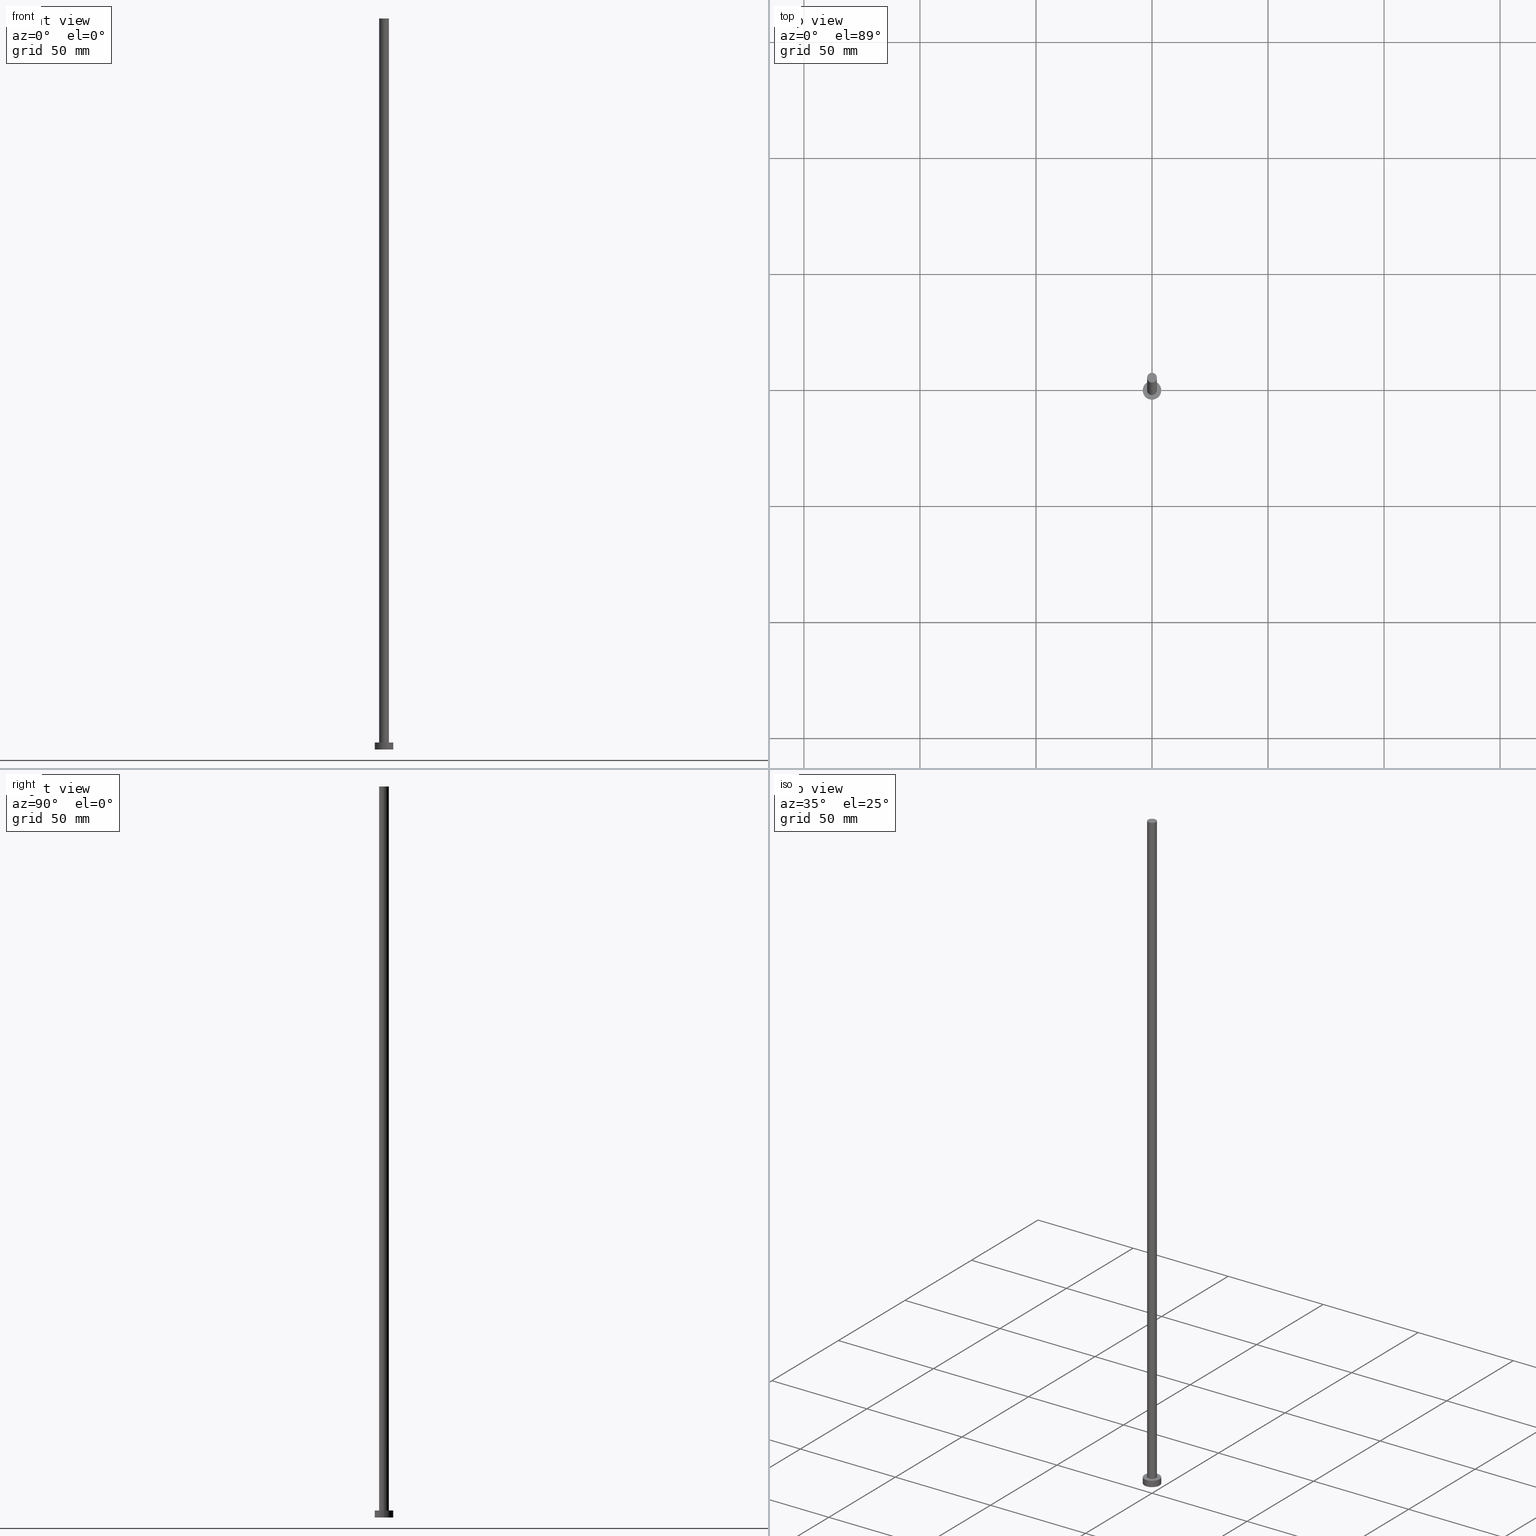
[diagram: canonical four-view strip — front | top / right | iso, engineering-drawing reading convention]
A machine part, canonical four-view strip (front | top / right | iso — engineering-drawing reading convention). The complete STEP part file that produces these views, byte-faithful:
ISO-10303-21;
HEADER;
FILE_DESCRIPTION (( 'STEP AP203' ),
    '1' );
FILE_NAME ('66d8.STEP',
    '2023-02-12T12:00:20',
    ( '' ),
    ( '' ),
    'SwSTEP 2.0',
    'SolidWorks 2019',
    '' );
FILE_SCHEMA (( 'CONFIG_CONTROL_DESIGN' ));
ENDSEC;

DATA;
#1 = CYLINDRICAL_SURFACE ( 'NONE', #154, 2.100000000000000089 ) ;
#2 = CIRCLE ( 'NONE', #185, 4.000000000000000000 ) ;
#3 = DIRECTION ( 'NONE',  ( -1.000000000000000000, 0.000000000000000000, 0.000000000000000000 ) ) ;
#4 = LINE ( 'NONE', #90, #60 ) ;
#5 = APPROVAL_ROLE ( '' ) ;
#6 = VERTEX_POINT ( 'NONE', #176 ) ;
#7 = CIRCLE ( 'NONE', #56, 4.000000000000000000 ) ;
#8 = EDGE_LOOP ( 'NONE', ( #117, #153 ) ) ;
#9 = VECTOR ( 'NONE', #148, 1000.000000000000000 ) ;
#10 = APPROVAL_DATE_TIME ( #114, #254 ) ;
#11 = ORIENTED_EDGE ( 'NONE', *, *, #19, .T. ) ;
#12 = DATE_AND_TIME ( #103, #230 ) ;
#13 = CARTESIAN_POINT ( 'NONE',  ( 4.000000000000000000, 4.898587196589412829E-16, 3.000000000000000000 ) ) ;
#14 = ADVANCED_FACE ( 'NONE', ( #247 ), #210, .T. ) ;
#15 = EDGE_LOOP ( 'NONE', ( #250, #191 ) ) ;
#16 = CLOSED_SHELL ( 'NONE', ( #221, #187, #14, #50, #234, #239, #58 ) ) ;
#17 = DIRECTION ( 'NONE',  ( 0.000000000000000000, 0.000000000000000000, 1.000000000000000000 ) ) ;
#18 = DIRECTION ( 'NONE',  ( 0.000000000000000000, 0.000000000000000000, 1.000000000000000000 ) ) ;
#19 = EDGE_CURVE ( 'NONE', #57, #226, #83, .T. ) ;
#20 = DIRECTION ( 'NONE',  ( 1.000000000000000000, 0.000000000000000000, 0.000000000000000000 ) ) ;
#21 =( LENGTH_UNIT ( ) NAMED_UNIT ( * ) SI_UNIT ( .MILLI., .METRE. ) );
#22 = PRODUCT_DEFINITION_SHAPE ( 'NONE', 'NONE',  #111 ) ;
#23 = PERSON ( 'NEUR�EN�', 'NEUR�EN�', 'NEUR�EN�', ('NEUR�EN�'), ('NEUR�EN�'), ('NEUR�EN�') ) ;
#24 = DIRECTION ( 'NONE',  ( 0.000000000000000000, 0.000000000000000000, 1.000000000000000000 ) ) ;
#25 = ORGANIZATION ( 'NEUR�EN�', 'NEUR�EN�', '' ) ;
#26 = EDGE_CURVE ( 'NONE', #57, #146, #2, .T. ) ;
#27 = PERSON_AND_ORGANIZATION ( #23, #25 ) ;
#28 = COORDINATED_UNIVERSAL_TIME_OFFSET ( 1, 0, .AHEAD. ) ;
#29 = SHAPE_DEFINITION_REPRESENTATION ( #22, #74 ) ;
#30 = AXIS2_PLACEMENT_3D ( 'NONE', #101, #198, #236 ) ;
#31 = PRODUCT_RELATED_PRODUCT_CATEGORY ( 'detail', '', ( #227 ) ) ;
#32 = ORIENTED_EDGE ( 'NONE', *, *, #19, .F. ) ;
#33 = COORDINATED_UNIVERSAL_TIME_OFFSET ( 1, 0, .AHEAD. ) ;
#34 = VERTEX_POINT ( 'NONE', #61 ) ;
#35 = MECHANICAL_CONTEXT ( 'NONE', #40, 'mechanical' ) ;
#36 = ORIENTED_EDGE ( 'NONE', *, *, #26, .F. ) ;
#37 = EDGE_CURVE ( 'NONE', #34, #93, #159, .T. ) ;
#38 = CARTESIAN_POINT ( 'NONE',  ( 0.000000000000000000, 0.000000000000000000, 3.000000000000000000 ) ) ;
#39 = PERSON_AND_ORGANIZATION_ROLE ( 'classification_officer' ) ;
#40 = APPLICATION_CONTEXT ( 'configuration controlled 3d designs of mechanical parts and assemblies' ) ;
#41 = FACE_OUTER_BOUND ( 'NONE', #8, .T. ) ;
#42 = DIRECTION ( 'NONE',  ( 1.000000000000000000, 0.000000000000000000, -0.000000000000000000 ) ) ;
#43 = CALENDAR_DATE ( 2023, 12, 2 ) ;
#44 = FACE_BOUND ( 'NONE', #207, .T. ) ;
#45 = APPROVAL ( #199, 'NEUR�EN�' ) ;
#46 = FACE_OUTER_BOUND ( 'NONE', #249, .T. ) ;
#47 = VECTOR ( 'NONE', #160, 1000.000000000000000 ) ;
#48 = CARTESIAN_POINT ( 'NONE',  ( 0.000000000000000000, 0.000000000000000000, 315.0000000000000000 ) ) ;
#49 = CARTESIAN_POINT ( 'NONE',  ( 0.000000000000000000, 0.000000000000000000, 0.000000000000000000 ) ) ;
#50 = ADVANCED_FACE ( 'NONE', ( #44, #135 ), #134, .T. ) ;
#51 = CARTESIAN_POINT ( 'NONE',  ( 0.000000000000000000, 0.000000000000000000, 3.000000000000000000 ) ) ;
#52 = CALENDAR_DATE ( 2023, 12, 2 ) ;
#53 = ORIENTED_EDGE ( 'NONE', *, *, #116, .F. ) ;
#54 = ORIENTED_EDGE ( 'NONE', *, *, #37, .F. ) ;
#55 = ORIENTED_EDGE ( 'NONE', *, *, #179, .F. ) ;
#56 = AXIS2_PLACEMENT_3D ( 'NONE', #49, #165, #200 ) ;
#57 = VERTEX_POINT ( 'NONE', #13 ) ;
#58 = ADVANCED_FACE ( 'NONE', ( #41 ), #217, .T. ) ;
#59 = CARTESIAN_POINT ( 'NONE',  ( -2.100000000000000089, 0.000000000000000000, 315.0000000000000000 ) ) ;
#60 = VECTOR ( 'NONE', #147, 1000.000000000000000 ) ;
#61 = CARTESIAN_POINT ( 'NONE',  ( 2.100000000000000089, 2.571758278209441957E-16, 315.0000000000000000 ) ) ;
#62 = DIRECTION ( 'NONE',  ( -1.000000000000000000, 0.000000000000000000, 0.000000000000000000 ) ) ;
#63 = AXIS2_PLACEMENT_3D ( 'NONE', #215, #18, #119 ) ;
#64 = PERSON_AND_ORGANIZATION ( #23, #25 ) ;
#65 = CC_DESIGN_APPROVAL ( #178, ( #218 ) ) ;
#66 = CYLINDRICAL_SURFACE ( 'NONE', #88, 2.100000000000000089 ) ;
#67 = ORIENTED_EDGE ( 'NONE', *, *, #179, .T. ) ;
#68 = CC_DESIGN_PERSON_AND_ORGANIZATION_ASSIGNMENT ( #27, #77, ( #111 ) ) ;
#69 = DATE_TIME_ROLE ( 'classification_date' ) ;
#70 = CARTESIAN_POINT ( 'NONE',  ( 0.000000000000000000, 0.000000000000000000, 315.0000000000000000 ) ) ;
#71 = AXIS2_PLACEMENT_3D ( 'NONE', #133, #197, #104 ) ;
#72 = DESIGN_CONTEXT ( 'detailed design', #89, 'design' ) ;
#73 = PLANE ( 'NONE',  #213 ) ;
#74 = ADVANCED_BREP_SHAPE_REPRESENTATION ( '66d8', ( #92, #94 ), #82 ) ;
#75 = DIRECTION ( 'NONE',  ( 0.000000000000000000, 0.000000000000000000, 1.000000000000000000 ) ) ;
#76 = AXIS2_PLACEMENT_3D ( 'NONE', #51, #186, #145 ) ;
#77 = PERSON_AND_ORGANIZATION_ROLE ( 'creator' ) ;
#78 = DIRECTION ( 'NONE',  ( -0.000000000000000000, -0.000000000000000000, -1.000000000000000000 ) ) ;
#79 = AXIS2_PLACEMENT_3D ( 'NONE', #128, #229, #20 ) ;
#80 = PERSON_AND_ORGANIZATION ( #23, #25 ) ;
#81 = PERSON_AND_ORGANIZATION ( #23, #25 ) ;
#82 =( GEOMETRIC_REPRESENTATION_CONTEXT ( 3 ) GLOBAL_UNCERTAINTY_ASSIGNED_CONTEXT ( ( #85 ) ) GLOBAL_UNIT_ASSIGNED_CONTEXT ( ( #21, #188, #244 ) ) REPRESENTATION_CONTEXT ( 'NONE', 'WORKASPACE' ) );
#83 = LINE ( 'NONE', #216, #47 ) ;
#84 = EDGE_CURVE ( 'NONE', #152, #95, #118, .T. ) ;
#85 = UNCERTAINTY_MEASURE_WITH_UNIT (LENGTH_MEASURE( 1.000000000000000082E-05 ), #21, 'distance_accuracy_value', 'NONE');
#86 = CYLINDRICAL_SURFACE ( 'NONE', #76, 4.000000000000000000 ) ;
#87 = APPROVAL_ROLE ( '' ) ;
#88 = AXIS2_PLACEMENT_3D ( 'NONE', #70, #109, #3 ) ;
#89 = APPLICATION_CONTEXT ( 'configuration controlled 3d designs of mechanical parts and assemblies' ) ;
#90 = CARTESIAN_POINT ( 'NONE',  ( 2.100000000000000089, 2.571758278209441957E-16, 315.0000000000000000 ) ) ;
#91 = CALENDAR_DATE ( 2023, 12, 2 ) ;
#92 = MANIFOLD_SOLID_BREP ( 'P�idat vysunut�m3', #16 ) ;
#93 = VERTEX_POINT ( 'NONE', #59 ) ;
#94 = AXIS2_PLACEMENT_3D ( 'NONE', #209, #174, #206 ) ;
#95 = VERTEX_POINT ( 'NONE', #121 ) ;
#96 = ORIENTED_EDGE ( 'NONE', *, *, #105, .F. ) ;
#97 = CIRCLE ( 'NONE', #242, 2.100000000000000089 ) ;
#98 = EDGE_LOOP ( 'NONE', ( #32, #53, #175, #194 ) ) ;
#99 = SECURITY_CLASSIFICATION ( '', '', #214 ) ;
#100 = PERSON_AND_ORGANIZATION_ROLE ( 'creator' ) ;
#101 = CARTESIAN_POINT ( 'NONE',  ( 0.000000000000000000, 0.000000000000000000, 315.0000000000000000 ) ) ;
#102 = AXIS2_PLACEMENT_3D ( 'NONE', #181, #182, #106 ) ;
#103 = CALENDAR_DATE ( 2023, 12, 2 ) ;
#104 = DIRECTION ( 'NONE',  ( 1.000000000000000000, 0.000000000000000000, 0.000000000000000000 ) ) ;
#105 = EDGE_CURVE ( 'NONE', #6, #226, #180, .T. ) ;
#106 = DIRECTION ( 'NONE',  ( 1.000000000000000000, 0.000000000000000000, 0.000000000000000000 ) ) ;
#107 = ORIENTED_EDGE ( 'NONE', *, *, #170, .T. ) ;
#108 = CC_DESIGN_DATE_AND_TIME_ASSIGNMENT ( #222, #69, ( #99 ) ) ;
#109 = DIRECTION ( 'NONE',  ( -0.000000000000000000, -0.000000000000000000, -1.000000000000000000 ) ) ;
#110 = APPROVAL_PERSON_ORGANIZATION ( #150, #178, #112 ) ;
#111 = PRODUCT_DEFINITION ( 'NEZN�M�', '', #218, #72 ) ;
#112 = APPROVAL_ROLE ( '' ) ;
#113 = EDGE_LOOP ( 'NONE', ( #54, #107, #235, #196 ) ) ;
#114 = DATE_AND_TIME ( #52, #173 ) ;
#115 = ORIENTED_EDGE ( 'NONE', *, *, #137, .F. ) ;
#116 = EDGE_CURVE ( 'NONE', #146, #57, #208, .T. ) ;
#117 = ORIENTED_EDGE ( 'NONE', *, *, #137, .T. ) ;
#118 = CIRCLE ( 'NONE', #63, 2.100000000000000089 ) ;
#119 = DIRECTION ( 'NONE',  ( 1.000000000000000000, 0.000000000000000000, 0.000000000000000000 ) ) ;
#120 = COORDINATED_UNIVERSAL_TIME_OFFSET ( 1, 0, .AHEAD. ) ;
#121 = CARTESIAN_POINT ( 'NONE',  ( 2.100000000000000089, 2.571758278209441957E-16, 3.000000000000000000 ) ) ;
#122 = CARTESIAN_POINT ( 'NONE',  ( 0.000000000000000000, 0.000000000000000000, 3.000000000000000000 ) ) ;
#123 = APPLICATION_PROTOCOL_DEFINITION ( 'international standard', 'config_control_design', 1994, #40 ) ;
#124 = CARTESIAN_POINT ( 'NONE',  ( 0.000000000000000000, 0.000000000000000000, 315.0000000000000000 ) ) ;
#125 = CC_DESIGN_PERSON_AND_ORGANIZATION_ASSIGNMENT ( #81, #39, ( #99 ) ) ;
#126 = DIRECTION ( 'NONE',  ( -0.000000000000000000, -0.000000000000000000, -1.000000000000000000 ) ) ;
#127 = AXIS2_PLACEMENT_3D ( 'NONE', #248, #78, #62 ) ;
#128 = CARTESIAN_POINT ( 'NONE',  ( 0.000000000000000000, 0.000000000000000000, 3.000000000000000000 ) ) ;
#129 = APPROVAL_STATUS ( 'not_yet_approved' ) ;
#130 = ORIENTED_EDGE ( 'NONE', *, *, #156, .T. ) ;
#131 = CC_DESIGN_PERSON_AND_ORGANIZATION_ASSIGNMENT ( #212, #251, ( #218 ) ) ;
#132 = ORIENTED_EDGE ( 'NONE', *, *, #84, .F. ) ;
#133 = CARTESIAN_POINT ( 'NONE',  ( 0.000000000000000000, 0.000000000000000000, 0.000000000000000000 ) ) ;
#134 = PLANE ( 'NONE',  #252 ) ;
#135 = FACE_OUTER_BOUND ( 'NONE', #15, .T. ) ;
#136 = CARTESIAN_POINT ( 'NONE',  ( 0.000000000000000000, 0.000000000000000000, 315.0000000000000000 ) ) ;
#137 = EDGE_CURVE ( 'NONE', #93, #34, #97, .T. ) ;
#138 = CC_DESIGN_APPROVAL ( #45, ( #99 ) ) ;
#139 = DIRECTION ( 'NONE',  ( 0.000000000000000000, 0.000000000000000000, 1.000000000000000000 ) ) ;
#140 = PERSON_AND_ORGANIZATION ( #23, #25 ) ;
#141 = LINE ( 'NONE', #243, #9 ) ;
#142 = ORIENTED_EDGE ( 'NONE', *, *, #84, .T. ) ;
#143 = LINE ( 'NONE', #183, #162 ) ;
#144 = CC_DESIGN_SECURITY_CLASSIFICATION ( #99, ( #218 ) ) ;
#145 = DIRECTION ( 'NONE',  ( -1.000000000000000000, 0.000000000000000000, 0.000000000000000000 ) ) ;
#146 = VERTEX_POINT ( 'NONE', #168 ) ;
#147 = DIRECTION ( 'NONE',  ( -0.000000000000000000, -0.000000000000000000, -1.000000000000000000 ) ) ;
#148 = DIRECTION ( 'NONE',  ( -0.000000000000000000, -0.000000000000000000, -1.000000000000000000 ) ) ;
#149 = EDGE_CURVE ( 'NONE', #146, #6, #141, .T. ) ;
#150 = PERSON_AND_ORGANIZATION ( #23, #25 ) ;
#151 = ORIENTED_EDGE ( 'NONE', *, *, #201, .F. ) ;
#152 = VERTEX_POINT ( 'NONE', #184 ) ;
#153 = ORIENTED_EDGE ( 'NONE', *, *, #37, .T. ) ;
#154 = AXIS2_PLACEMENT_3D ( 'NONE', #48, #171, #204 ) ;
#155 = PERSON_AND_ORGANIZATION ( #23, #25 ) ;
#156 = EDGE_CURVE ( 'NONE', #93, #152, #143, .T. ) ;
#157 = DIRECTION ( 'NONE',  ( 0.000000000000000000, 0.000000000000000000, 1.000000000000000000 ) ) ;
#158 = CC_DESIGN_PERSON_AND_ORGANIZATION_ASSIGNMENT ( #80, #232, ( #227 ) ) ;
#159 = CIRCLE ( 'NONE', #166, 2.100000000000000089 ) ;
#160 = DIRECTION ( 'NONE',  ( -0.000000000000000000, -0.000000000000000000, -1.000000000000000000 ) ) ;
#161 = APPROVAL_DATE_TIME ( #12, #178 ) ;
#162 = VECTOR ( 'NONE', #126, 1000.000000000000000 ) ;
#163 = APPROVAL_PERSON_ORGANIZATION ( #140, #45, #87 ) ;
#164 = DATE_AND_TIME ( #202, #240 ) ;
#165 = DIRECTION ( 'NONE',  ( 0.000000000000000000, 0.000000000000000000, 1.000000000000000000 ) ) ;
#166 = AXIS2_PLACEMENT_3D ( 'NONE', #136, #139, #219 ) ;
#167 = APPROVAL_DATE_TIME ( #164, #45 ) ;
#168 = CARTESIAN_POINT ( 'NONE',  ( -4.000000000000000000, 0.000000000000000000, 3.000000000000000000 ) ) ;
#169 = CARTESIAN_POINT ( 'NONE',  ( 4.000000000000000000, 4.898587196589412829E-16, 0.000000000000000000 ) ) ;
#170 = EDGE_CURVE ( 'NONE', #34, #95, #4, .T. ) ;
#171 = DIRECTION ( 'NONE',  ( -0.000000000000000000, -0.000000000000000000, -1.000000000000000000 ) ) ;
#172 = DATE_AND_TIME ( #91, #253 ) ;
#173 = LOCAL_TIME ( 13, 0, 20.00000000000000000, #33 ) ;
#174 = DIRECTION ( 'NONE',  ( 0.000000000000000000, 0.000000000000000000, 1.000000000000000000 ) ) ;
#175 = ORIENTED_EDGE ( 'NONE', *, *, #149, .T. ) ;
#176 = CARTESIAN_POINT ( 'NONE',  ( -4.000000000000000000, 0.000000000000000000, 0.000000000000000000 ) ) ;
#177 = CIRCLE ( 'NONE', #79, 2.100000000000000089 ) ;
#178 = APPROVAL ( #129, 'NEUR�EN�' ) ;
#179 = EDGE_CURVE ( 'NONE', #226, #6, #7, .T. ) ;
#180 = CIRCLE ( 'NONE', #71, 4.000000000000000000 ) ;
#181 = CARTESIAN_POINT ( 'NONE',  ( 0.000000000000000000, 0.000000000000000000, 3.000000000000000000 ) ) ;
#182 = DIRECTION ( 'NONE',  ( 0.000000000000000000, 0.000000000000000000, 1.000000000000000000 ) ) ;
#183 = CARTESIAN_POINT ( 'NONE',  ( -2.100000000000000089, 0.000000000000000000, 315.0000000000000000 ) ) ;
#184 = CARTESIAN_POINT ( 'NONE',  ( -2.100000000000000089, 0.000000000000000000, 3.000000000000000000 ) ) ;
#185 = AXIS2_PLACEMENT_3D ( 'NONE', #38, #17, #238 ) ;
#186 = DIRECTION ( 'NONE',  ( -0.000000000000000000, -0.000000000000000000, -1.000000000000000000 ) ) ;
#187 = ADVANCED_FACE ( 'NONE', ( #46 ), #86, .T. ) ;
#188 =( NAMED_UNIT ( * ) PLANE_ANGLE_UNIT ( ) SI_UNIT ( $, .RADIAN. ) );
#189 = ORIENTED_EDGE ( 'NONE', *, *, #149, .F. ) ;
#190 = COORDINATED_UNIVERSAL_TIME_OFFSET ( 1, 0, .AHEAD. ) ;
#191 = ORIENTED_EDGE ( 'NONE', *, *, #26, .T. ) ;
#192 = CC_DESIGN_APPROVAL ( #254, ( #111 ) ) ;
#193 = APPLICATION_PROTOCOL_DEFINITION ( 'international standard', 'config_control_design', 1994, #89 ) ;
#194 = ORIENTED_EDGE ( 'NONE', *, *, #105, .T. ) ;
#195 = APPROVAL_STATUS ( 'not_yet_approved' ) ;
#196 = ORIENTED_EDGE ( 'NONE', *, *, #156, .F. ) ;
#197 = DIRECTION ( 'NONE',  ( 0.000000000000000000, 0.000000000000000000, 1.000000000000000000 ) ) ;
#198 = DIRECTION ( 'NONE',  ( 0.000000000000000000, 0.000000000000000000, 1.000000000000000000 ) ) ;
#199 = APPROVAL_STATUS ( 'not_yet_approved' ) ;
#200 = DIRECTION ( 'NONE',  ( 1.000000000000000000, 0.000000000000000000, 0.000000000000000000 ) ) ;
#201 = EDGE_CURVE ( 'NONE', #95, #152, #177, .T. ) ;
#202 = CALENDAR_DATE ( 2023, 12, 2 ) ;
#203 = CARTESIAN_POINT ( 'NONE',  ( 0.000000000000000000, 0.000000000000000000, 0.000000000000000000 ) ) ;
#204 = DIRECTION ( 'NONE',  ( -1.000000000000000000, 0.000000000000000000, 0.000000000000000000 ) ) ;
#205 = DIRECTION ( 'NONE',  ( 1.000000000000000000, 0.000000000000000000, -0.000000000000000000 ) ) ;
#206 = DIRECTION ( 'NONE',  ( 1.000000000000000000, 0.000000000000000000, 0.000000000000000000 ) ) ;
#207 = EDGE_LOOP ( 'NONE', ( #132, #151 ) ) ;
#208 = CIRCLE ( 'NONE', #102, 4.000000000000000000 ) ;
#209 = CARTESIAN_POINT ( 'NONE',  ( 0.000000000000000000, 0.000000000000000000, 0.000000000000000000 ) ) ;
#210 = CYLINDRICAL_SURFACE ( 'NONE', #127, 4.000000000000000000 ) ;
#211 = EDGE_LOOP ( 'NONE', ( #96, #55 ) ) ;
#212 = PERSON_AND_ORGANIZATION ( #23, #25 ) ;
#213 = AXIS2_PLACEMENT_3D ( 'NONE', #203, #24, #205 ) ;
#214 = SECURITY_CLASSIFICATION_LEVEL ( 'unclassified' ) ;
#215 = CARTESIAN_POINT ( 'NONE',  ( 0.000000000000000000, 0.000000000000000000, 3.000000000000000000 ) ) ;
#216 = CARTESIAN_POINT ( 'NONE',  ( 4.000000000000000000, 4.898587196589412829E-16, 3.000000000000000000 ) ) ;
#217 = PLANE ( 'NONE',  #30 ) ;
#218 = PRODUCT_DEFINITION_FORMATION_WITH_SPECIFIED_SOURCE ( 'LIBOVOLN�', '', #227, .NOT_KNOWN. ) ;
#219 = DIRECTION ( 'NONE',  ( 1.000000000000000000, 0.000000000000000000, 0.000000000000000000 ) ) ;
#220 = CC_DESIGN_DATE_AND_TIME_ASSIGNMENT ( #172, #245, ( #111 ) ) ;
#221 = ADVANCED_FACE ( 'NONE', ( #223 ), #1, .T. ) ;
#222 = DATE_AND_TIME ( #43, #224 ) ;
#223 = FACE_OUTER_BOUND ( 'NONE', #113, .T. ) ;
#224 = LOCAL_TIME ( 13, 0, 20.00000000000000000, #120 ) ;
#225 = FACE_OUTER_BOUND ( 'NONE', #211, .T. ) ;
#226 = VERTEX_POINT ( 'NONE', #169 ) ;
#227 = PRODUCT ( '66d8', '66d8', '', ( #35 ) ) ;
#228 = DIRECTION ( 'NONE',  ( 1.000000000000000000, 0.000000000000000000, 0.000000000000000000 ) ) ;
#229 = DIRECTION ( 'NONE',  ( 0.000000000000000000, 0.000000000000000000, 1.000000000000000000 ) ) ;
#230 = LOCAL_TIME ( 13, 0, 20.00000000000000000, #190 ) ;
#231 = ORIENTED_EDGE ( 'NONE', *, *, #170, .F. ) ;
#232 = PERSON_AND_ORGANIZATION_ROLE ( 'design_owner' ) ;
#233 = APPROVAL_PERSON_ORGANIZATION ( #155, #254, #5 ) ;
#234 = ADVANCED_FACE ( 'NONE', ( #225 ), #73, .F. ) ;
#235 = ORIENTED_EDGE ( 'NONE', *, *, #201, .T. ) ;
#236 = DIRECTION ( 'NONE',  ( 1.000000000000000000, 0.000000000000000000, -0.000000000000000000 ) ) ;
#237 = CC_DESIGN_PERSON_AND_ORGANIZATION_ASSIGNMENT ( #64, #100, ( #218 ) ) ;
#238 = DIRECTION ( 'NONE',  ( 1.000000000000000000, 0.000000000000000000, 0.000000000000000000 ) ) ;
#239 = ADVANCED_FACE ( 'NONE', ( #241 ), #66, .T. ) ;
#240 = LOCAL_TIME ( 13, 0, 20.00000000000000000, #255 ) ;
#241 = FACE_OUTER_BOUND ( 'NONE', #246, .T. ) ;
#242 = AXIS2_PLACEMENT_3D ( 'NONE', #124, #75, #228 ) ;
#243 = CARTESIAN_POINT ( 'NONE',  ( -4.000000000000000000, 0.000000000000000000, 3.000000000000000000 ) ) ;
#244 =( NAMED_UNIT ( * ) SI_UNIT ( $, .STERADIAN. ) SOLID_ANGLE_UNIT ( ) );
#245 = DATE_TIME_ROLE ( 'creation_date' ) ;
#246 = EDGE_LOOP ( 'NONE', ( #231, #115, #130, #142 ) ) ;
#247 = FACE_OUTER_BOUND ( 'NONE', #98, .T. ) ;
#248 = CARTESIAN_POINT ( 'NONE',  ( 0.000000000000000000, 0.000000000000000000, 3.000000000000000000 ) ) ;
#249 = EDGE_LOOP ( 'NONE', ( #36, #11, #67, #189 ) ) ;
#250 = ORIENTED_EDGE ( 'NONE', *, *, #116, .T. ) ;
#251 = PERSON_AND_ORGANIZATION_ROLE ( 'design_supplier' ) ;
#252 = AXIS2_PLACEMENT_3D ( 'NONE', #122, #157, #42 ) ;
#253 = LOCAL_TIME ( 13, 0, 20.00000000000000000, #28 ) ;
#254 = APPROVAL ( #195, 'NEUR�EN�' ) ;
#255 = COORDINATED_UNIVERSAL_TIME_OFFSET ( 1, 0, .AHEAD. ) ;
ENDSEC;
END-ISO-10303-21;
